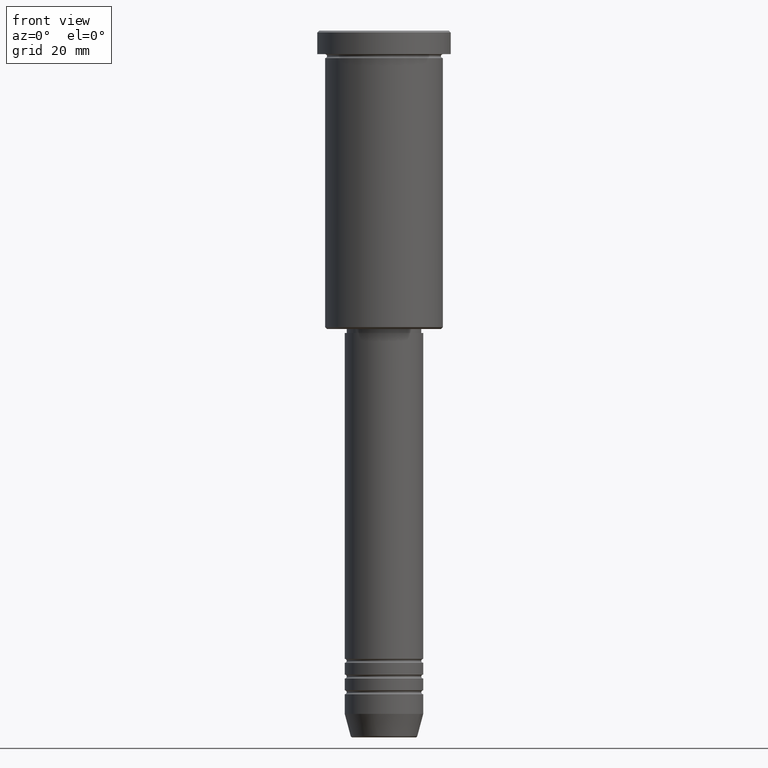
[diagram: clean part render]
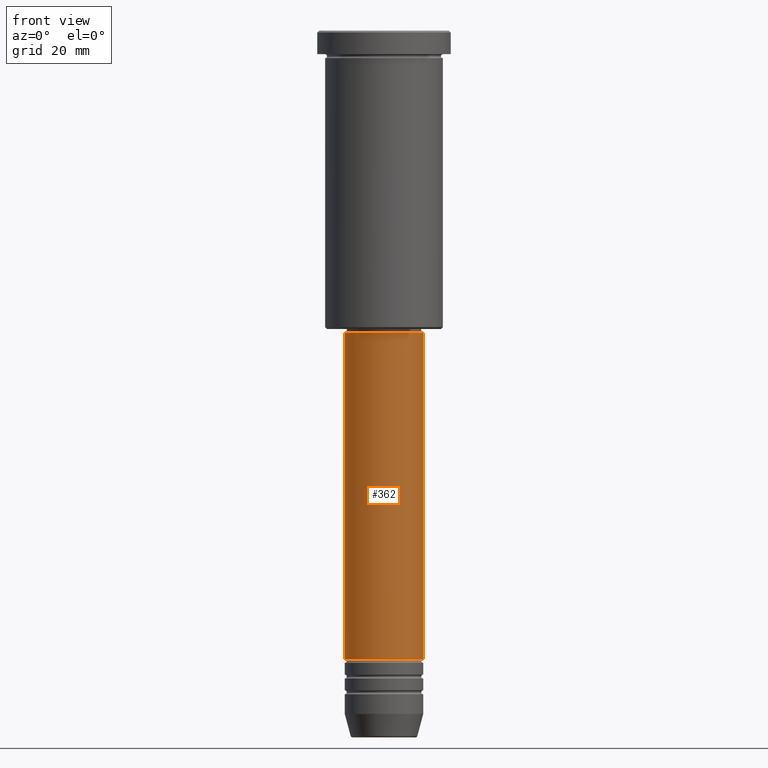
[diagram: same view with one face highlighted and labeled with its STEP entity id]
A machine part, front view. The second image highlights one B-rep face of the part: STEP entity #362.
In plain terms, the highlighted cylindrical surface (partial cylindrical patch) has radius 10 mm, axis along (-0, -0, 1).
Its self-contained STEP definition (entity closure, byte-faithful):
#25 = CYLINDRICAL_SURFACE ( 'NONE', #477, 10.00000000000000000 ) ;
#36 = EDGE_LOOP ( 'NONE', ( #287, #501, #1158, #1131 ) ) ;
#66 = LINE ( 'NONE', #426, #435 ) ;
#97 = AXIS2_PLACEMENT_3D ( 'NONE', #530, #444, #518 ) ;
#226 = EDGE_CURVE ( 'NONE', #968, #524, #1074, .T. ) ;
#246 = EDGE_CURVE ( 'NONE', #1046, #524, #66, .T. ) ;
#279 = DIRECTION ( 'NONE',  ( 1.000000000000000000, 0.000000000000000000, 0.000000000000000000 ) ) ;
#287 = ORIENTED_EDGE ( 'NONE', *, *, #348, .F. ) ;
#288 = CARTESIAN_POINT ( 'NONE',  ( -10.00000000000000178, 1.224646799147353454E-15, -160.0000000000000000 ) ) ;
#348 = EDGE_CURVE ( 'NONE', #430, #968, #941, .T. ) ;
#362 = ADVANCED_FACE ( 'NONE', ( #389 ), #25, .T. ) ;
#389 = FACE_OUTER_BOUND ( 'NONE', #36, .T. ) ;
#402 = VECTOR ( 'NONE', #928, 1000.000000000000000 ) ;
#408 = CARTESIAN_POINT ( 'NONE',  ( 10.00000000000000178, 0.000000000000000000, -160.0000000000000000 ) ) ;
#426 = CARTESIAN_POINT ( 'NONE',  ( 10.00000000000000000, 0.000000000000000000, 0.000000000000000000 ) ) ;
#430 = VERTEX_POINT ( 'NONE', #288 ) ;
#435 = VECTOR ( 'NONE', #809, 1000.000000000000000 ) ;
#444 = DIRECTION ( 'NONE',  ( -0.000000000000000000, -0.000000000000000000, 1.000000000000000000 ) ) ;
#467 = DIRECTION ( 'NONE',  ( 1.000000000000000000, 0.000000000000000000, 0.000000000000000000 ) ) ;
#477 = AXIS2_PLACEMENT_3D ( 'NONE', #1102, #1100, #279 ) ;
#485 = DIRECTION ( 'NONE',  ( -0.000000000000000000, -0.000000000000000000, 1.000000000000000000 ) ) ;
#501 = ORIENTED_EDGE ( 'NONE', *, *, #867, .T. ) ;
#518 = DIRECTION ( 'NONE',  ( 1.000000000000000000, 0.000000000000000000, 0.000000000000000000 ) ) ;
#524 = VERTEX_POINT ( 'NONE', #573 ) ;
#530 = CARTESIAN_POINT ( 'NONE',  ( 0.000000000000000000, 0.000000000000000000, -77.00000000000004263 ) ) ;
#538 = AXIS2_PLACEMENT_3D ( 'NONE', #952, #485, #467 ) ;
#573 = CARTESIAN_POINT ( 'NONE',  ( 9.999999999999998224, 0.000000000000000000, -77.00000000000004263 ) ) ;
#747 = CARTESIAN_POINT ( 'NONE',  ( -10.00000000000000000, 1.224646799147353256E-15, 0.000000000000000000 ) ) ;
#778 = CIRCLE ( 'NONE', #538, 10.00000000000000178 ) ;
#809 = DIRECTION ( 'NONE',  ( -0.000000000000000000, -0.000000000000000000, 1.000000000000000000 ) ) ;
#867 = EDGE_CURVE ( 'NONE', #430, #1046, #778, .T. ) ;
#928 = DIRECTION ( 'NONE',  ( -0.000000000000000000, -0.000000000000000000, 1.000000000000000000 ) ) ;
#941 = LINE ( 'NONE', #747, #402 ) ;
#952 = CARTESIAN_POINT ( 'NONE',  ( 0.000000000000000000, 0.000000000000000000, -160.0000000000000000 ) ) ;
#968 = VERTEX_POINT ( 'NONE', #982 ) ;
#982 = CARTESIAN_POINT ( 'NONE',  ( -9.999999999999998224, 1.224646799147353256E-15, -77.00000000000004263 ) ) ;
#1046 = VERTEX_POINT ( 'NONE', #408 ) ;
#1074 = CIRCLE ( 'NONE', #97, 9.999999999999998224 ) ;
#1100 = DIRECTION ( 'NONE',  ( -0.000000000000000000, -0.000000000000000000, 1.000000000000000000 ) ) ;
#1102 = CARTESIAN_POINT ( 'NONE',  ( 0.000000000000000000, 0.000000000000000000, 0.000000000000000000 ) ) ;
#1131 = ORIENTED_EDGE ( 'NONE', *, *, #226, .F. ) ;
#1158 = ORIENTED_EDGE ( 'NONE', *, *, #246, .T. ) ;